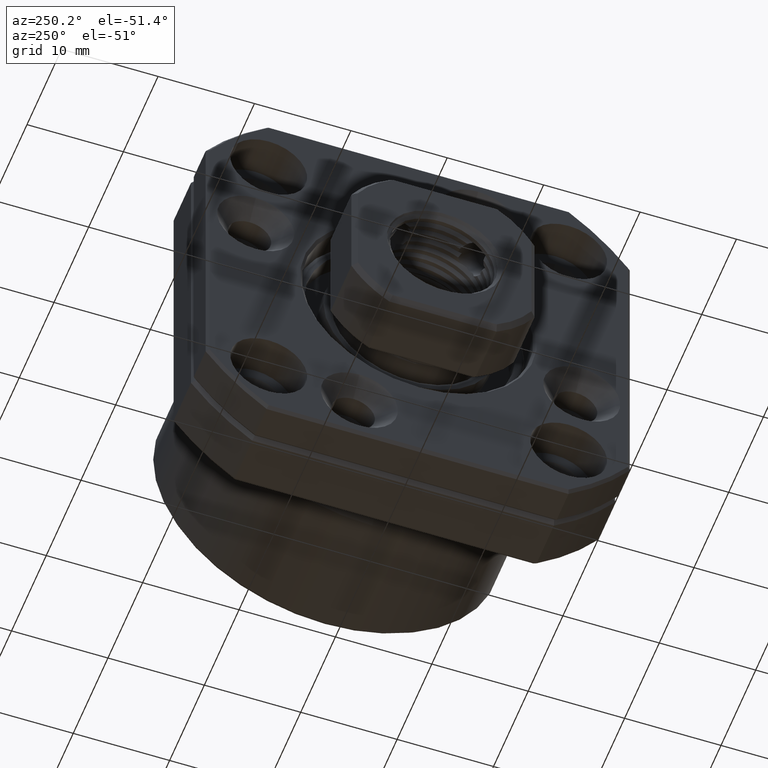
[diagram: clean part render]
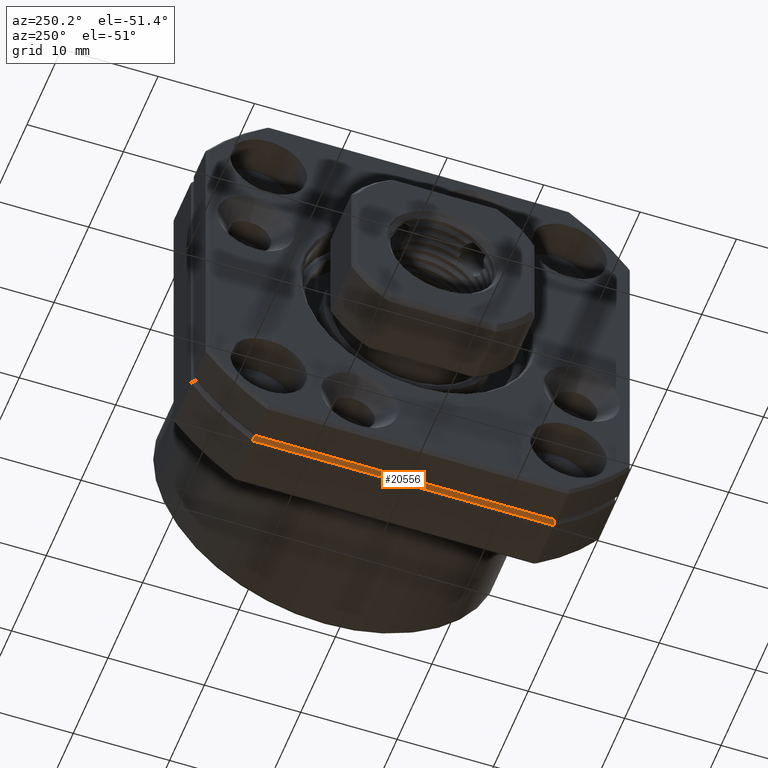
[diagram: same view with one face highlighted and labeled with its STEP entity id]
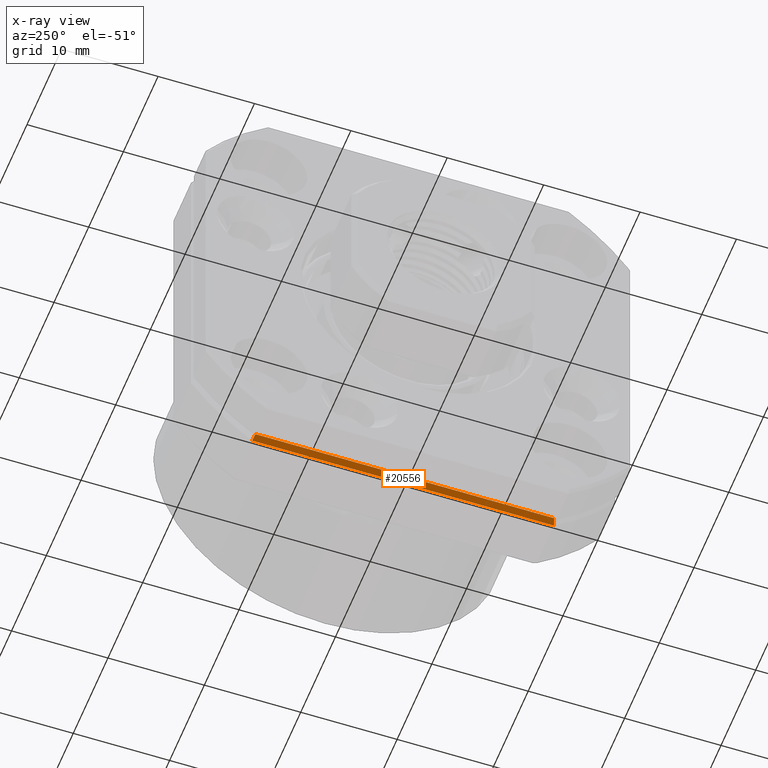
[diagram: x-ray of the same camera — body ghosted, the highlighted face saturated]
A machine part, auxiliary view. The second image highlights one B-rep face of the part: STEP entity #20556.
The next image is the same camera in x-ray: the body ghosted, the highlighted face saturated — about 0% of this face is hidden behind the body in this view.
In plain terms, the highlighted planar face has unit normal (-0.7071, 0, -0.7071).
Its self-contained STEP definition (entity closure, byte-faithful):
#312 = VERTEX_POINT ( 'NONE', #14279 ) ;
#444 = EDGE_CURVE ( 'NONE', #312, #450, #14511, .T. ) ;
#450 = VERTEX_POINT ( 'NONE', #14496 ) ;
#8931 = CARTESIAN_POINT ( 'NONE',  ( 0.5000000000000143200, -15.65247584249852200, -22.00000000000000400 ) ) ;
#8941 = CARTESIAN_POINT ( 'NONE',  ( 0.5000000000000143200, 15.65247584249852200, -22.00000000000000400 ) ) ;
#9503 = DIRECTION ( 'NONE',  ( -0.0000000000000000000, 1.000000000000000000, 0.0000000000000000000 ) ) ;
#9504 = VECTOR ( 'NONE', #9503, 1000.000000000000000 ) ;
#9505 = CARTESIAN_POINT ( 'NONE',  ( 0.5000000000000073300, 15.65247584249852200, -22.00000000000000400 ) ) ;
#9511 = LINE ( 'NONE', #9505, #9504 ) ;
#10070 = DIRECTION ( 'NONE',  ( -0.7071067811865425800, 0.0000000000000000000, -0.7071067811865525700 ) ) ;
#10071 = CARTESIAN_POINT ( 'NONE',  ( 0.0000000000000000000, 13.99999999999999800, -21.50000000000000000 ) ) ;
#10073 = AXIS2_PLACEMENT_3D ( 'NONE', #10071, #10070, #10112 ) ;
#10086 = PLANE ( 'NONE',  #10073 ) ;
#10087 = FACE_OUTER_BOUND ( 'NONE', #20547, .T. ) ;
#10097 = CARTESIAN_POINT ( 'NONE',  ( 0.5000000000000143200, -15.65247584249852200, -22.00000000000000400 ) ) ;
#10098 = CARTESIAN_POINT ( 'NONE',  ( 0.3332915257775947400, -15.59922277381472400, -21.83329152577758600 ) ) ;
#10099 = CARTESIAN_POINT ( 'NONE',  ( 0.1666242397295374400, -15.54571112695856700, -21.66662423972953600 ) ) ;
#10100 = CARTESIAN_POINT ( 'NONE',  ( 0.0000000000000000000, -15.49193338482966100, -21.50000000000000000 ) ) ;
#10101 = B_SPLINE_CURVE_WITH_KNOTS ( 'NONE', 3,
 ( #10100, #10099, #10098, #10097 ),
 .UNSPECIFIED., .F., .F.,
 ( 4, 4 ),
 ( 0.0000000000000000000, 0.0007251026690851255600 ),
 .UNSPECIFIED. ) ;
#10102 = CARTESIAN_POINT ( 'NONE',  ( 0.5000000000000143200, 15.65247584249852200, -22.00000000000000400 ) ) ;
#10103 = CARTESIAN_POINT ( 'NONE',  ( 0.3332915257775945200, 15.59922277381472500, -21.83329152577758600 ) ) ;
#10104 = CARTESIAN_POINT ( 'NONE',  ( 0.1666242397295365500, 15.54571112695857100, -21.66662423972953600 ) ) ;
#10105 = CARTESIAN_POINT ( 'NONE',  ( 0.0000000000000000000, 15.49193338482966300, -21.50000000000000000 ) ) ;
#10106 = B_SPLINE_CURVE_WITH_KNOTS ( 'NONE', 3,
 ( #10105, #10104, #10103, #10102 ),
 .UNSPECIFIED., .F., .F.,
 ( 4, 4 ),
 ( 0.0000000000000000000, 0.0007251026690851249100 ),
 .UNSPECIFIED. ) ;
#10112 = DIRECTION ( 'NONE',  ( -0.7071067811865525700, 0.0000000000000000000, 0.7071067811865425800 ) ) ;
#14279 = CARTESIAN_POINT ( 'NONE',  ( 0.0000000000000000000, 15.49193338482966300, -21.50000000000000000 ) ) ;
#14310 = VERTEX_POINT ( 'NONE', #8941 ) ;
#14496 = CARTESIAN_POINT ( 'NONE',  ( 0.0000000000000000000, -15.49193338482966100, -21.50000000000000000 ) ) ;
#14508 = DIRECTION ( 'NONE',  ( 0.0000000000000000000, -1.000000000000000000, 0.0000000000000000000 ) ) ;
#14509 = VECTOR ( 'NONE', #14508, 1000.000000000000000 ) ;
#14510 = CARTESIAN_POINT ( 'NONE',  ( 0.0000000000000000000, -15.65247584249852200, -21.50000000000000000 ) ) ;
#14511 = LINE ( 'NONE', #14510, #14509 ) ;
#14567 = VERTEX_POINT ( 'NONE', #8931 ) ;
#20244 = EDGE_CURVE ( 'NONE', #14567, #14310, #9511, .T. ) ;
#20546 = ORIENTED_EDGE ( 'NONE', *, *, #20564, .F. ) ;
#20547 = EDGE_LOOP ( 'NONE', ( #20548, #20565, #20546, #20549 ) ) ;
#20548 = ORIENTED_EDGE ( 'NONE', *, *, #20559, .T. ) ;
#20549 = ORIENTED_EDGE ( 'NONE', *, *, #444, .F. ) ;
#20556 = ADVANCED_FACE ( 'NONE', ( #10087 ), #10086, .T. ) ;
#20559 = EDGE_CURVE ( 'NONE', #312, #14310, #10106, .T. ) ;
#20564 = EDGE_CURVE ( 'NONE', #450, #14567, #10101, .T. ) ;
#20565 = ORIENTED_EDGE ( 'NONE', *, *, #20244, .F. ) ;